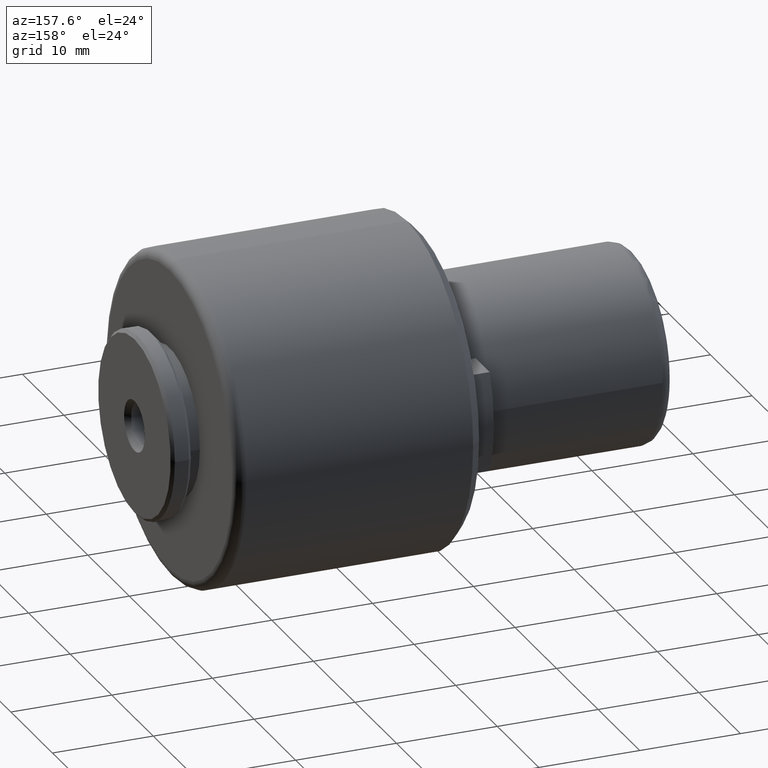
[diagram: clean part render]
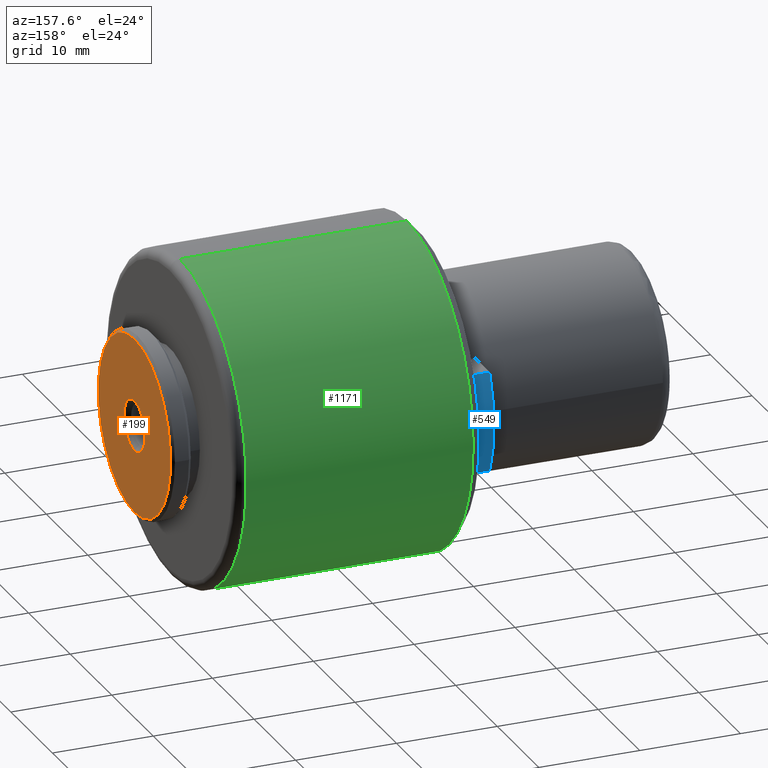
[diagram: same view with three faces highlighted in distinct colors, each labeled with its STEP entity id]
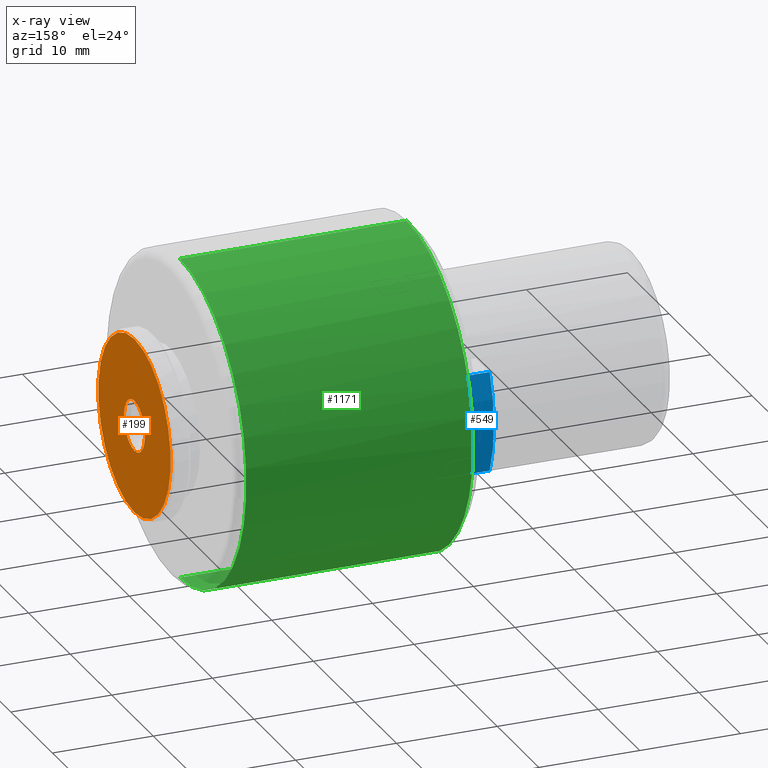
[diagram: x-ray of the same camera — body ghosted, the three highlighted faces saturated]
A machine part, auxiliary view with three faces highlighted in distinct colors.
The next image is the same camera in x-ray (body ghosted, the three faces saturated) — at least one of them is partly hidden behind the body in this view.
Their STEP definitions:

[orange] entity #199 — the highlighted planar face has unit normal (-1, 0, 0).
#18 = EDGE_CURVE ( 'NONE', #466, #109, #259, .T. ) ;
#55 = ORIENTED_EDGE ( 'NONE', *, *, #18, .T. ) ;
#72 = DIRECTION ( 'NONE',  ( -1.000000000000000000, 0.0000000000000000000, 0.0000000000000000000 ) ) ;
#109 = VERTEX_POINT ( 'NONE', #1066 ) ;
#137 = DIRECTION ( 'NONE',  ( -1.000000000000000000, 0.0000000000000000000, 0.0000000000000000000 ) ) ;
#186 = AXIS2_PLACEMENT_3D ( 'NONE', #1165, #234, #1183 ) ;
#190 = CARTESIAN_POINT ( 'NONE',  ( 49.50000000000000000, -8.804400000000002900, -8.804400000000002900 ) ) ;
#199 = ADVANCED_FACE ( 'NONE', ( #346, #389 ), #1019, .F. ) ;
#227 = CARTESIAN_POINT ( 'NONE',  ( 49.50000000000009900, 0.0000000000000000000, 8.699999999999901600 ) ) ;
#234 = DIRECTION ( 'NONE',  ( 1.000000000000000000, -0.0000000000000000000, -0.0000000000000000000 ) ) ;
#235 = AXIS2_PLACEMENT_3D ( 'NONE', #1029, #441, #1172 ) ;
#253 = CARTESIAN_POINT ( 'NONE',  ( 49.50000000000000000, 0.0000000000000000000, 0.0000000000000000000 ) ) ;
#259 = CIRCLE ( 'NONE', #235, 8.699999999999901600 ) ;
#346 = FACE_BOUND ( 'NONE', #1196, .T. ) ;
#383 = CIRCLE ( 'NONE', #760, 2.499999999999912100 ) ;
#389 = FACE_OUTER_BOUND ( 'NONE', #662, .T. ) ;
#421 = CIRCLE ( 'NONE', #186, 8.699999999999901600 ) ;
#441 = DIRECTION ( 'NONE',  ( 1.000000000000000000, -0.0000000000000000000, -0.0000000000000000000 ) ) ;
#466 = VERTEX_POINT ( 'NONE', #227 ) ;
#514 = DIRECTION ( 'NONE',  ( -1.000000000000000000, 0.0000000000000000000, 0.0000000000000000000 ) ) ;
#551 = CARTESIAN_POINT ( 'NONE',  ( 49.50000000000000000, 3.061616997868275200E-016, 2.499999999999912100 ) ) ;
#563 = EDGE_CURVE ( 'NONE', #812, #1070, #383, .T. ) ;
#650 = DIRECTION ( 'NONE',  ( 0.0000000000000000000, 0.0000000000000000000, 1.000000000000000000 ) ) ;
#662 = EDGE_LOOP ( 'NONE', ( #55, #1001 ) ) ;
#668 = CARTESIAN_POINT ( 'NONE',  ( 49.50000000000000000, 0.0000000000000000000, 0.0000000000000000000 ) ) ;
#719 = AXIS2_PLACEMENT_3D ( 'NONE', #190, #72, #784 ) ;
#756 = DIRECTION ( 'NONE',  ( 0.0000000000000000000, 0.0000000000000000000, 1.000000000000000000 ) ) ;
#760 = AXIS2_PLACEMENT_3D ( 'NONE', #253, #137, #650 ) ;
#769 = ORIENTED_EDGE ( 'NONE', *, *, #1079, .T. ) ;
#784 = DIRECTION ( 'NONE',  ( 0.0000000000000000000, 0.0000000000000000000, 1.000000000000000000 ) ) ;
#812 = VERTEX_POINT ( 'NONE', #551 ) ;
#831 = ORIENTED_EDGE ( 'NONE', *, *, #563, .T. ) ;
#905 = CIRCLE ( 'NONE', #1212, 2.499999999999912100 ) ;
#1001 = ORIENTED_EDGE ( 'NONE', *, *, #1123, .T. ) ;
#1019 = PLANE ( 'NONE',  #719 ) ;
#1029 = CARTESIAN_POINT ( 'NONE',  ( 49.50000000000009900, 0.0000000000000000000, 0.0000000000000000000 ) ) ;
#1045 = CARTESIAN_POINT ( 'NONE',  ( 49.50000000000000000, 0.0000000000000000000, -2.499999999999912100 ) ) ;
#1066 = CARTESIAN_POINT ( 'NONE',  ( 49.50000000000009900, 1.083812417245401600E-015, -8.699999999999901600 ) ) ;
#1070 = VERTEX_POINT ( 'NONE', #1045 ) ;
#1079 = EDGE_CURVE ( 'NONE', #1070, #812, #905, .T. ) ;
#1123 = EDGE_CURVE ( 'NONE', #109, #466, #421, .T. ) ;
#1165 = CARTESIAN_POINT ( 'NONE',  ( 49.50000000000009900, 0.0000000000000000000, 0.0000000000000000000 ) ) ;
#1172 = DIRECTION ( 'NONE',  ( 0.0000000000000000000, 0.0000000000000000000, 1.000000000000000000 ) ) ;
#1183 = DIRECTION ( 'NONE',  ( 0.0000000000000000000, 0.0000000000000000000, 1.000000000000000000 ) ) ;
#1196 = EDGE_LOOP ( 'NONE', ( #769, #831 ) ) ;
#1212 = AXIS2_PLACEMENT_3D ( 'NONE', #668, #514, #756 ) ;

[blue] entity #549 — the highlighted cylindrical surface (partial cylindrical patch) has radius 12.5 mm, axis along (-1, -0, -0).
#30 = CARTESIAN_POINT ( 'NONE',  ( 21.50000000000000000, 11.47813138271872700, 4.949999996039999000 ) ) ;
#83 = EDGE_CURVE ( 'NONE', #620, #1230, #1122, .T. ) ;
#99 = CARTESIAN_POINT ( 'NONE',  ( 19.00000000000000400, 11.47813138101095600, -4.950000000000000200 ) ) ;
#130 = DIRECTION ( 'NONE',  ( -1.000000000000000000, -0.0000000000000000000, -0.0000000000000000000 ) ) ;
#136 = AXIS2_PLACEMENT_3D ( 'NONE', #1040, #589, #582 ) ;
#143 = CARTESIAN_POINT ( 'NONE',  ( 21.50000000000000000, 0.0000000000000000000, 0.0000000000000000000 ) ) ;
#162 = EDGE_CURVE ( 'NONE', #1230, #727, #708, .T. ) ;
#197 = CARTESIAN_POINT ( 'NONE',  ( 19.00000000000000400, 11.47813138101095600, 4.949999999999999300 ) ) ;
#297 = VECTOR ( 'NONE', #611, 1000.000000000000000 ) ;
#428 = DIRECTION ( 'NONE',  ( 2.775557561562891400E-016, -1.000000000000000000, 0.0000000000000000000 ) ) ;
#500 = CIRCLE ( 'NONE', #136, 12.50000000000000000 ) ;
#510 = VERTEX_POINT ( 'NONE', #197 ) ;
#549 = ADVANCED_FACE ( 'NONE', ( #1105 ), #1030, .T. ) ;
#553 = ORIENTED_EDGE ( 'NONE', *, *, #162, .T. ) ;
#582 = DIRECTION ( 'NONE',  ( 0.0000000000000000000, -1.000000000000000000, 1.776356839400250500E-015 ) ) ;
#589 = DIRECTION ( 'NONE',  ( 1.000000000000000000, 1.387778780781445700E-016, 0.0000000000000000000 ) ) ;
#593 = CARTESIAN_POINT ( 'NONE',  ( 20.25000000000000000, 11.47813138099999900, 4.950000000000000200 ) ) ;
#602 = CARTESIAN_POINT ( 'NONE',  ( 20.25000000000000000, 11.47813138099999900, -4.950000000000000200 ) ) ;
#611 = DIRECTION ( 'NONE',  ( -1.000000000000000000, -0.0000000000000000000, -0.0000000000000000000 ) ) ;
#613 = EDGE_LOOP ( 'NONE', ( #978, #553, #634, #798 ) ) ;
#620 = VERTEX_POINT ( 'NONE', #30 ) ;
#632 = AXIS2_PLACEMENT_3D ( 'NONE', #1195, #1236, #428 ) ;
#634 = ORIENTED_EDGE ( 'NONE', *, *, #892, .T. ) ;
#708 = LINE ( 'NONE', #602, #940 ) ;
#727 = VERTEX_POINT ( 'NONE', #99 ) ;
#777 = LINE ( 'NONE', #593, #297 ) ;
#798 = ORIENTED_EDGE ( 'NONE', *, *, #933, .F. ) ;
#820 = AXIS2_PLACEMENT_3D ( 'NONE', #143, #915, #1082 ) ;
#892 = EDGE_CURVE ( 'NONE', #727, #510, #500, .T. ) ;
#915 = DIRECTION ( 'NONE',  ( -1.000000000000000000, -1.387778780781445700E-016, -0.0000000000000000000 ) ) ;
#933 = EDGE_CURVE ( 'NONE', #620, #510, #777, .T. ) ;
#940 = VECTOR ( 'NONE', #130, 1000.000000000000000 ) ;
#978 = ORIENTED_EDGE ( 'NONE', *, *, #83, .T. ) ;
#1030 = CYLINDRICAL_SURFACE ( 'NONE', #820, 12.50000000000000000 ) ;
#1040 = CARTESIAN_POINT ( 'NONE',  ( 19.00000000000000400, -3.469446951953614700E-016, 0.0000000000000000000 ) ) ;
#1082 = DIRECTION ( 'NONE',  ( 2.775557561562891400E-016, -1.000000000000000000, 0.0000000000000000000 ) ) ;
#1105 = FACE_OUTER_BOUND ( 'NONE', #613, .T. ) ;
#1122 = CIRCLE ( 'NONE', #632, 12.50000000000000000 ) ;
#1195 = CARTESIAN_POINT ( 'NONE',  ( 21.50000000000000000, 2.210607693131455000E-031, 0.0000000000000000000 ) ) ;
#1200 = CARTESIAN_POINT ( 'NONE',  ( 21.50000000000000000, 11.47813138271872400, -4.949999996040002500 ) ) ;
#1230 = VERTEX_POINT ( 'NONE', #1200 ) ;
#1236 = DIRECTION ( 'NONE',  ( -1.000000000000000000, -1.387778780781445700E-016, -0.0000000000000000000 ) ) ;

[green] entity #1171 — the highlighted cylindrical surface (partial cylindrical patch) has radius 16 mm, axis along (-1, 0, 0).
#2 = CIRCLE ( 'NONE', #306, 16.00000000000000000 ) ;
#8 = DIRECTION ( 'NONE',  ( 1.000000000000000000, 0.0000000000000000000, 0.0000000000000000000 ) ) ;
#49 = ORIENTED_EDGE ( 'NONE', *, *, #946, .T. ) ;
#97 = CARTESIAN_POINT ( 'NONE',  ( 45.00000000000000000, 1.959434878635765100E-015, -16.00000000000000000 ) ) ;
#117 = ORIENTED_EDGE ( 'NONE', *, *, #792, .F. ) ;
#166 = VERTEX_POINT ( 'NONE', #789 ) ;
#183 = LINE ( 'NONE', #619, #983 ) ;
#248 = DIRECTION ( 'NONE',  ( 0.0000000000000000000, 0.0000000000000000000, -1.000000000000000000 ) ) ;
#249 = VERTEX_POINT ( 'NONE', #1121 ) ;
#269 = VERTEX_POINT ( 'NONE', #97 ) ;
#306 = AXIS2_PLACEMENT_3D ( 'NONE', #1197, #476, #843 ) ;
#309 = CARTESIAN_POINT ( 'NONE',  ( 33.70455488500000000, 0.0000000000000000000, 0.0000000000000000000 ) ) ;
#321 = DIRECTION ( 'NONE',  ( -1.000000000000000000, 0.0000000000000000000, 0.0000000000000000000 ) ) ;
#337 = DIRECTION ( 'NONE',  ( -1.000000000000000000, 0.0000000000000000000, -0.0000000000000000000 ) ) ;
#340 = DIRECTION ( 'NONE',  ( 0.0000000000000000000, 0.0000000000000000000, 1.000000000000000000 ) ) ;
#360 = LINE ( 'NONE', #720, #1109 ) ;
#361 = CYLINDRICAL_SURFACE ( 'NONE', #660, 16.00000000000000000 ) ;
#400 = VERTEX_POINT ( 'NONE', #959 ) ;
#426 = CARTESIAN_POINT ( 'NONE',  ( 45.00000000000000000, 0.0000000000000000000, 16.00000000000000000 ) ) ;
#435 = AXIS2_PLACEMENT_3D ( 'NONE', #814, #337, #248 ) ;
#436 = EDGE_LOOP ( 'NONE', ( #882, #49, #548, #509, #117 ) ) ;
#460 = EDGE_CURVE ( 'NONE', #400, #249, #2, .T. ) ;
#476 = DIRECTION ( 'NONE',  ( 1.000000000000000000, 0.0000000000000000000, 0.0000000000000000000 ) ) ;
#509 = ORIENTED_EDGE ( 'NONE', *, *, #676, .T. ) ;
#548 = ORIENTED_EDGE ( 'NONE', *, *, #460, .T. ) ;
#570 = AXIS2_PLACEMENT_3D ( 'NONE', #1223, #8, #1113 ) ;
#619 = CARTESIAN_POINT ( 'NONE',  ( 33.70455488500000000, 1.959434878635765100E-015, -16.00000000000000000 ) ) ;
#660 = AXIS2_PLACEMENT_3D ( 'NONE', #309, #321, #340 ) ;
#665 = EDGE_CURVE ( 'NONE', #791, #269, #1134, .T. ) ;
#676 = EDGE_CURVE ( 'NONE', #249, #166, #1014, .T. ) ;
#720 = CARTESIAN_POINT ( 'NONE',  ( 33.70455488500000000, 0.0000000000000000000, 16.00000000000000000 ) ) ;
#786 = DIRECTION ( 'NONE',  ( -1.000000000000000000, 0.0000000000000000000, 0.0000000000000000000 ) ) ;
#789 = CARTESIAN_POINT ( 'NONE',  ( 22.49999999999996400, 0.0000000000000000000, 16.00000000000000000 ) ) ;
#791 = VERTEX_POINT ( 'NONE', #426 ) ;
#792 = EDGE_CURVE ( 'NONE', #791, #166, #360, .T. ) ;
#814 = CARTESIAN_POINT ( 'NONE',  ( 45.00000000000000000, 0.0000000000000000000, 0.0000000000000000000 ) ) ;
#843 = DIRECTION ( 'NONE',  ( 2.168404344971008900E-015, 0.0000000000000000000, -1.000000000000000000 ) ) ;
#846 = DIRECTION ( 'NONE',  ( -1.000000000000000000, 0.0000000000000000000, 0.0000000000000000000 ) ) ;
#882 = ORIENTED_EDGE ( 'NONE', *, *, #665, .T. ) ;
#946 = EDGE_CURVE ( 'NONE', #269, #400, #183, .T. ) ;
#959 = CARTESIAN_POINT ( 'NONE',  ( 22.49999999999996400, 1.959434878635765100E-015, -16.00000000000000000 ) ) ;
#983 = VECTOR ( 'NONE', #786, 1000.000000000000000 ) ;
#1014 = CIRCLE ( 'NONE', #570, 16.00000000000000000 ) ;
#1109 = VECTOR ( 'NONE', #846, 1000.000000000000000 ) ;
#1113 = DIRECTION ( 'NONE',  ( 2.168404344971008900E-015, 0.0000000000000000000, -1.000000000000000000 ) ) ;
#1121 = CARTESIAN_POINT ( 'NONE',  ( 22.49999999999996400, 15.99999999999997000, 0.0000000000000000000 ) ) ;
#1134 = CIRCLE ( 'NONE', #435, 16.00000000000000000 ) ;
#1171 = ADVANCED_FACE ( 'NONE', ( #1204 ), #361, .T. ) ;
#1197 = CARTESIAN_POINT ( 'NONE',  ( 22.49999999999996400, 0.0000000000000000000, 0.0000000000000000000 ) ) ;
#1204 = FACE_OUTER_BOUND ( 'NONE', #436, .T. ) ;
#1223 = CARTESIAN_POINT ( 'NONE',  ( 22.49999999999996400, 0.0000000000000000000, 0.0000000000000000000 ) ) ;